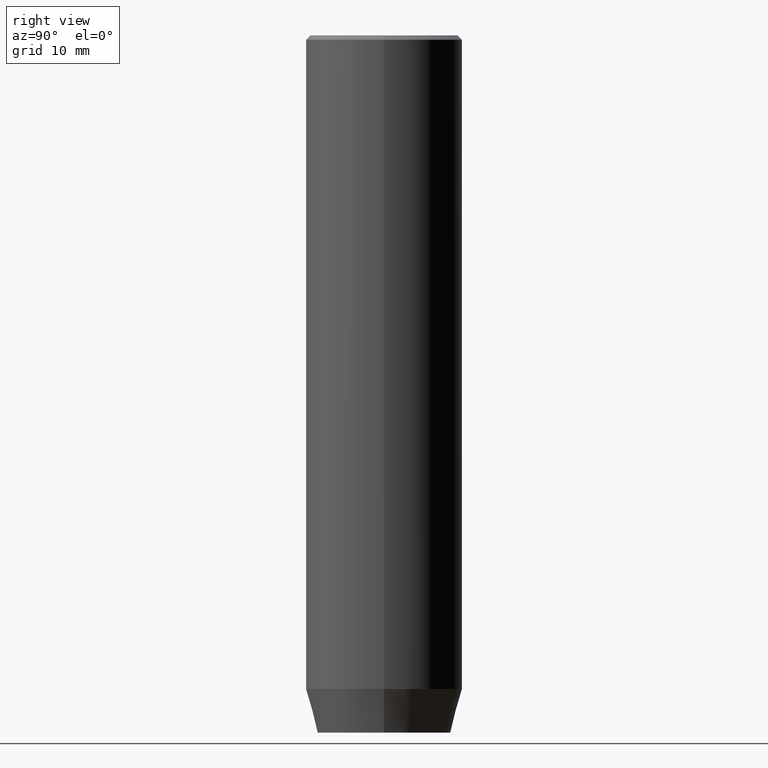
[diagram: clean part render]
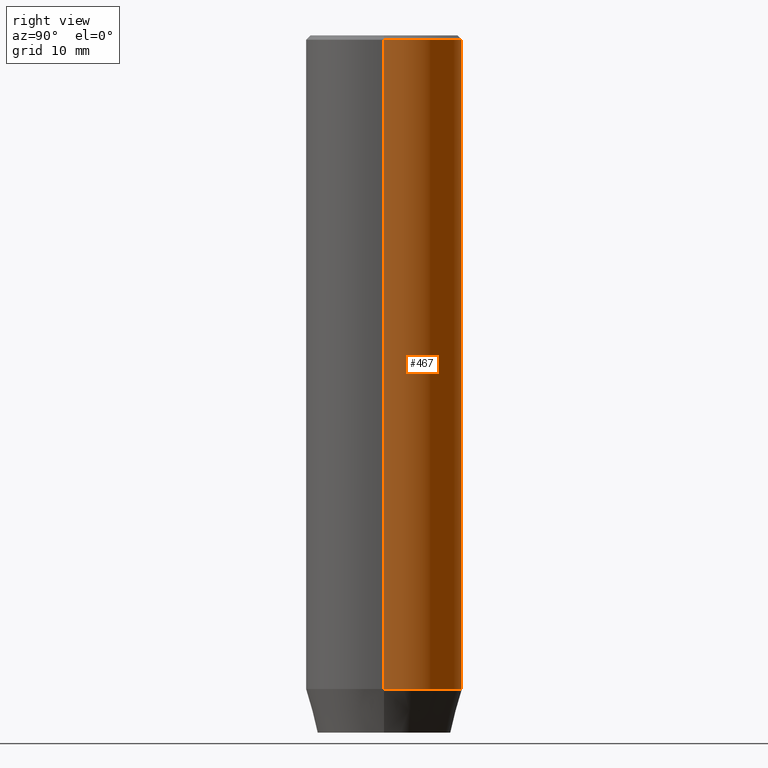
[diagram: same view with one face highlighted and labeled with its STEP entity id]
A machine part, right view. The second image highlights one B-rep face of the part: STEP entity #467.
In plain terms, the highlighted cylindrical surface (partial cylindrical patch) has radius 9 mm, axis along (-0, -0, 1).
Its self-contained STEP definition (entity closure, byte-faithful):
#8 = DIRECTION ( 'NONE',  ( 0.000000000000000000, 0.000000000000000000, -1.000000000000000000 ) ) ;
#10 = CIRCLE ( 'NONE', #623, 9.000000000000000000 ) ;
#54 = CARTESIAN_POINT ( 'NONE',  ( 9.000000000000000000, 0.000000000000000000, 0.000000000000000000 ) ) ;
#60 = VECTOR ( 'NONE', #351, 1000.000000000000000 ) ;
#71 = VERTEX_POINT ( 'NONE', #103 ) ;
#80 = EDGE_CURVE ( 'NONE', #127, #71, #495, .T. ) ;
#82 = DIRECTION ( 'NONE',  ( 1.000000000000000000, 0.000000000000000000, 0.000000000000000000 ) ) ;
#92 = VERTEX_POINT ( 'NONE', #393 ) ;
#103 = CARTESIAN_POINT ( 'NONE',  ( 9.000000000000000000, 0.000000000000000000, -0.5000000000000023315 ) ) ;
#112 = LINE ( 'NONE', #122, #356 ) ;
#113 = CARTESIAN_POINT ( 'NONE',  ( 9.000000000000000000, 0.000000000000000000, -75.00000000000000000 ) ) ;
#120 = ORIENTED_EDGE ( 'NONE', *, *, #601, .T. ) ;
#122 = CARTESIAN_POINT ( 'NONE',  ( -9.000000000000000000, 1.102182119232617714E-15, 0.000000000000000000 ) ) ;
#127 = VERTEX_POINT ( 'NONE', #113 ) ;
#128 = ORIENTED_EDGE ( 'NONE', *, *, #610, .T. ) ;
#142 = ORIENTED_EDGE ( 'NONE', *, *, #80, .F. ) ;
#145 = EDGE_CURVE ( 'NONE', #491, #71, #165, .T. ) ;
#165 = CIRCLE ( 'NONE', #547, 9.000000000000000000 ) ;
#168 = CARTESIAN_POINT ( 'NONE',  ( -9.000000000000000000, 1.102182119232617714E-15, -0.5000000000000023315 ) ) ;
#234 = DIRECTION ( 'NONE',  ( 1.000000000000000000, 0.000000000000000000, 0.000000000000000000 ) ) ;
#267 = DIRECTION ( 'NONE',  ( -0.000000000000000000, -0.000000000000000000, 1.000000000000000000 ) ) ;
#351 = DIRECTION ( 'NONE',  ( -0.000000000000000000, -0.000000000000000000, 1.000000000000000000 ) ) ;
#356 = VECTOR ( 'NONE', #267, 1000.000000000000000 ) ;
#361 = DIRECTION ( 'NONE',  ( 1.000000000000000000, 0.000000000000000000, 0.000000000000000000 ) ) ;
#384 = EDGE_LOOP ( 'NONE', ( #120, #128, #526, #142 ) ) ;
#393 = CARTESIAN_POINT ( 'NONE',  ( -9.000000000000000000, 1.102182119232617714E-15, -75.00000000000000000 ) ) ;
#413 = CARTESIAN_POINT ( 'NONE',  ( 0.000000000000000000, 0.000000000000000000, -0.5000000000000023315 ) ) ;
#430 = DIRECTION ( 'NONE',  ( -0.000000000000000000, -0.000000000000000000, 1.000000000000000000 ) ) ;
#467 = ADVANCED_FACE ( 'NONE', ( #532 ), #498, .T. ) ;
#491 = VERTEX_POINT ( 'NONE', #168 ) ;
#495 = LINE ( 'NONE', #54, #60 ) ;
#498 = CYLINDRICAL_SURFACE ( 'NONE', #607, 9.000000000000000000 ) ;
#526 = ORIENTED_EDGE ( 'NONE', *, *, #145, .T. ) ;
#532 = FACE_OUTER_BOUND ( 'NONE', #384, .T. ) ;
#547 = AXIS2_PLACEMENT_3D ( 'NONE', #413, #8, #361 ) ;
#556 = DIRECTION ( 'NONE',  ( -0.000000000000000000, -0.000000000000000000, 1.000000000000000000 ) ) ;
#569 = CARTESIAN_POINT ( 'NONE',  ( 0.000000000000000000, 0.000000000000000000, -75.00000000000000000 ) ) ;
#601 = EDGE_CURVE ( 'NONE', #127, #92, #10, .T. ) ;
#607 = AXIS2_PLACEMENT_3D ( 'NONE', #618, #430, #234 ) ;
#610 = EDGE_CURVE ( 'NONE', #92, #491, #112, .T. ) ;
#618 = CARTESIAN_POINT ( 'NONE',  ( 0.000000000000000000, 0.000000000000000000, 0.000000000000000000 ) ) ;
#623 = AXIS2_PLACEMENT_3D ( 'NONE', #569, #556, #82 ) ;